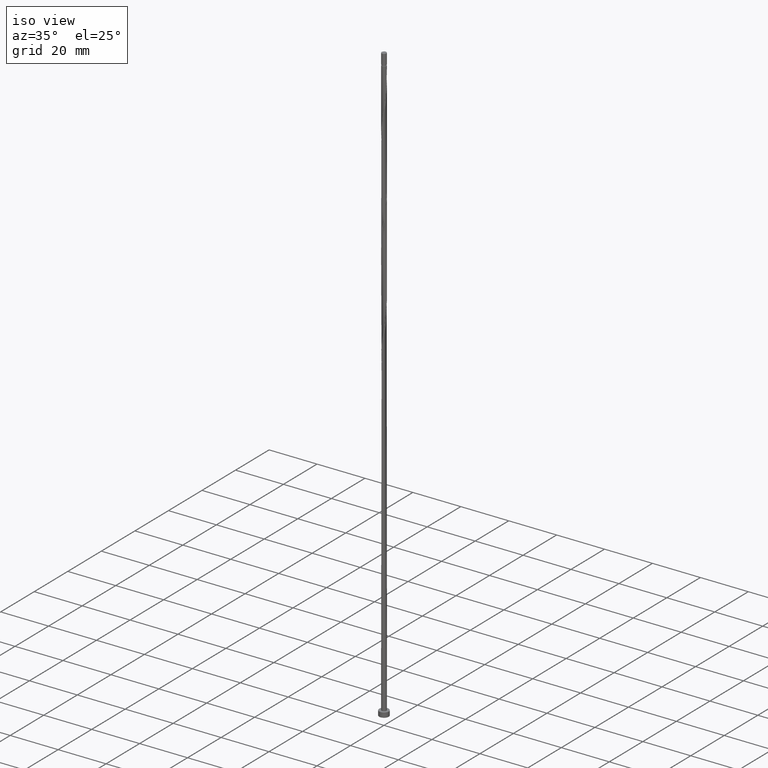
[diagram: clean part render]
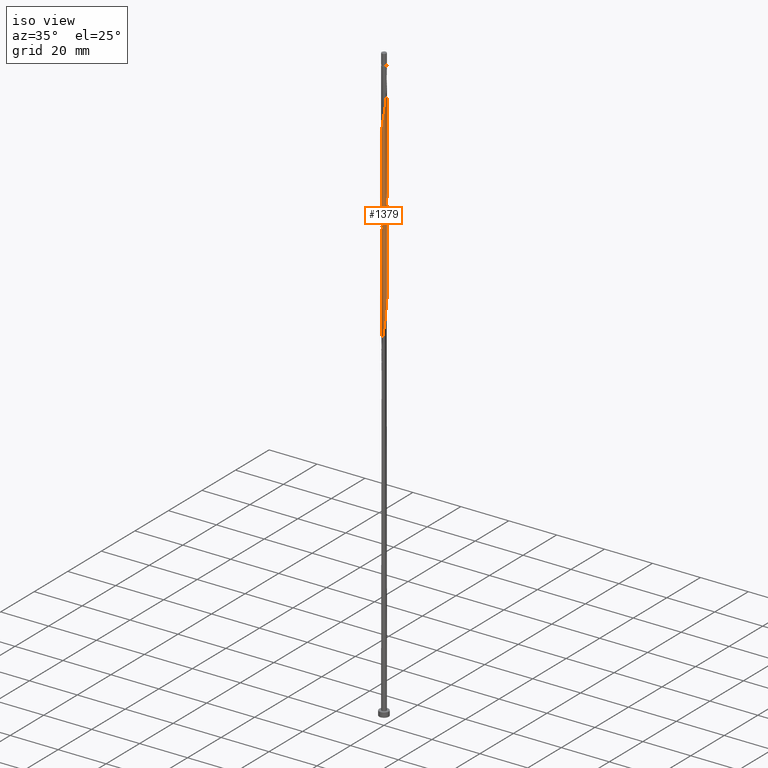
[diagram: same view with one face highlighted and labeled with its STEP entity id]
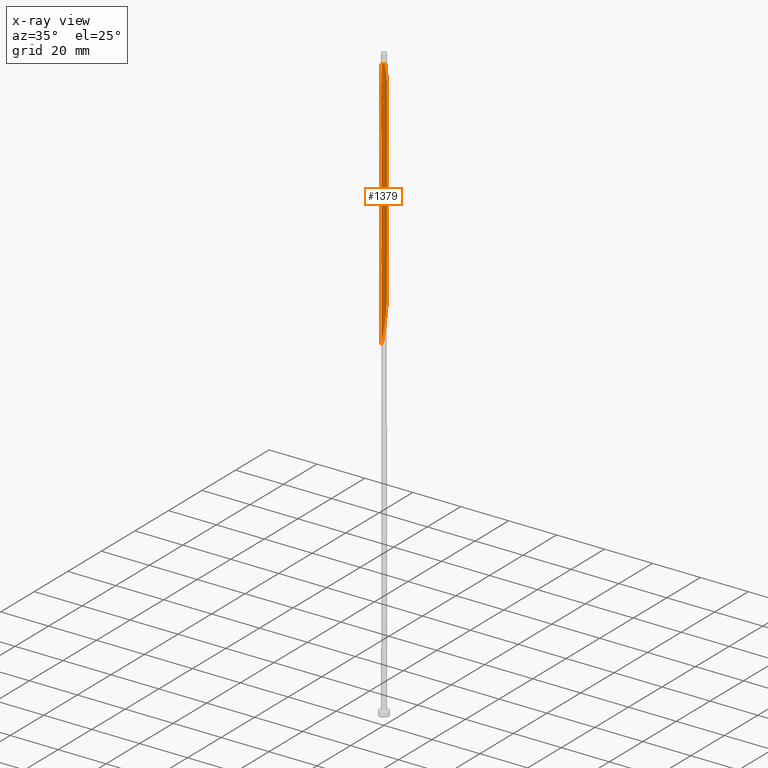
[diagram: x-ray of the same camera — body ghosted, the highlighted face saturated]
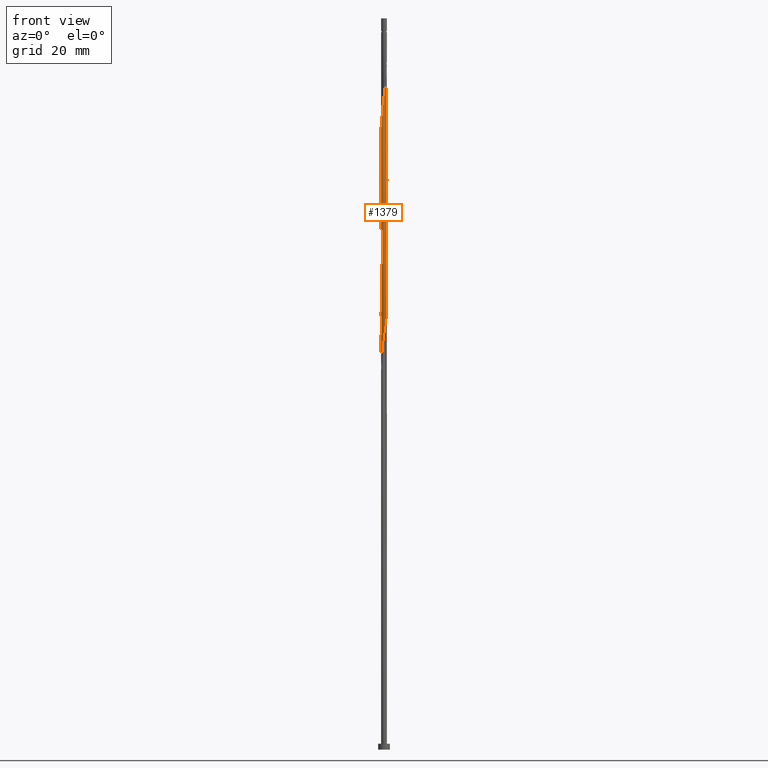
[diagram: same view with one face highlighted and labeled with its STEP entity id]
A machine part, iso view. The second image highlights one B-rep face of the part: STEP entity #1379.
The next image is the same camera in x-ray: the body ghosted, the highlighted face saturated — about 0% of this face is hidden behind the body in this view.
A second angle (front view) of the same face is appended — the face is thin or edge-on in the first view.
In plain terms, the highlighted cylindrical surface (bore or boss wall) has radius 1 mm, axis along (-0, -0, -1).
Its self-contained STEP definition (entity closure, byte-faithful):
#1 = CARTESIAN_POINT ( 'NONE',  ( 0.04131436890171372167, 0.9991461969713221203, 243.6707133084280201 ) ) ;
#3 = CARTESIAN_POINT ( 'NONE',  ( -1.000000000000001332, 3.776374479654925961E-16, 212.6953555351000773 ) ) ;
#4 = CARTESIAN_POINT ( 'NONE',  ( -0.9999999999999820144, 0.000000000000000000, 245.2732774109920797 ) ) ;
#9 = CARTESIAN_POINT ( 'NONE',  ( 0.1626326816669504405, 0.9941297243636999514, 242.8694312571459761 ) ) ;
#39 = CARTESIAN_POINT ( 'NONE',  ( -1.000000000000001554, -6.206714491314109161E-16, 132.0178659535507109 ) ) ;
#43 = CARTESIAN_POINT ( 'NONE',  ( -0.9672781958313425577, -0.2812760030270849421, 133.8950722827869981 ) ) ;
#52 = CARTESIAN_POINT ( 'NONE',  ( 0.1989974874213398526, 0.9799999999999982059, 203.6066107443254509 ) ) ;
#54 = CARTESIAN_POINT ( 'NONE',  ( -1.000000000000001998, -0.08125643853703547193, 132.5575666908989945 ) ) ;
#63 = CARTESIAN_POINT ( 'NONE',  ( 0.8718570959045008895, 0.5045874575637011583, 197.9976363853510861 ) ) ;
#72 = CARTESIAN_POINT ( 'NONE',  ( 0.6934807312836421822, 0.7204751732976698575, 238.8630210007356709 ) ) ;
#78 = CARTESIAN_POINT ( 'NONE',  ( 0.9968411931290096506, -0.07942062503616402480, 193.9912261289408661 ) ) ;
#81 = CARTESIAN_POINT ( 'NONE',  ( 0.3179910309791544876, -0.9558373304210522337, 225.2412261289407809 ) ) ;
#114 = CARTESIAN_POINT ( 'NONE',  ( -0.08000394386352469023, -1.004162669578944067, 141.9078927956075233 ) ) ;
#116 = FACE_OUTER_BOUND ( 'NONE', #1444, .T. ) ;
#125 = CARTESIAN_POINT ( 'NONE',  ( -0.6316322329299663974, -0.7752681615569591012, 179.5681492058639321 ) ) ;
#130 = CARTESIAN_POINT ( 'NONE',  ( 1.000000000000000000, 1.224646799147353207E-16, 250.0000000000000000 ) ) ;
#133 = CARTESIAN_POINT ( 'NONE',  ( -0.6316322329299663974, -0.7752681615569591012, 137.9014825391972181 ) ) ;
#141 = CARTESIAN_POINT ( 'NONE',  ( 0.9871977833283673842, -0.2004590596635323629, 151.5232774109920797 ) ) ;
#143 = LINE ( 'NONE', #130, #479 ) ;
#144 = VERTEX_POINT ( 'NONE', #1627 ) ;
#154 = EDGE_CURVE ( 'NONE', #559, #649, #308, .T. ) ;
#176 = CARTESIAN_POINT ( 'NONE',  ( -0.9105386168779776579, 0.4308859770096601927, 212.4207133084279917 ) ) ;
#182 = CARTESIAN_POINT ( 'NONE',  ( -0.04131436890171313187, -0.9991461969713221203, 222.8373799750946489 ) ) ;
#204 = CARTESIAN_POINT ( 'NONE',  ( 0.9672781958313422246, -0.2812760030270856637, 231.6514825391971328 ) ) ;
#217 = CARTESIAN_POINT ( 'NONE',  ( 0.9968411931290097616, 0.07942062503616280356, 234.0553286930433501 ) ) ;
#225 = CARTESIAN_POINT ( 'NONE',  ( 0.9195676458679213905, -0.3929317302953934665, 230.8502004879151457 ) ) ;
#226 = AXIS2_PLACEMENT_3D ( 'NONE', #484, #744, #1011 ) ;
#233 = CARTESIAN_POINT ( 'NONE',  ( 0.4277443331018992434, -0.9038997651837366032, 226.0425081802229101 ) ) ;
#238 = CARTESIAN_POINT ( 'NONE',  ( 0.9868813993804974594, 0.1614469063091452106, 153.9271235648382685 ) ) ;
#244 = CARTESIAN_POINT ( 'NONE',  ( -0.5374976352246447764, -0.8519621999464206397, 138.7027645904792905 ) ) ;
#248 = CARTESIAN_POINT ( 'NONE',  ( -0.6059992068794376463, -0.8046789790165532752, 218.8309697186843721 ) ) ;
#254 = CARTESIAN_POINT ( 'NONE',  ( 0.9488682001031725211, -0.3156725183365965415, 150.7219953597100641 ) ) ;
#262 = CARTESIAN_POINT ( 'NONE',  ( 1.006484602929652583, 0.04161780959120506967, 153.1258415135561961 ) ) ;
#272 = CARTESIAN_POINT ( 'NONE',  ( -0.9871977833283673842, 0.2004590596635321964, 172.3566107443254509 ) ) ;
#286 = CARTESIAN_POINT ( 'NONE',  ( 0.08000394386352403797, -1.004162669578944067, 223.6386620263766929 ) ) ;
#294 = EDGE_CURVE ( 'NONE', #144, #649, #1454, .T. ) ;
#308 = LINE ( 'NONE', #834, #445 ) ;
#323 = CARTESIAN_POINT ( 'NONE',  ( 0.7257668306352885734, 0.6985741231674978957, 199.6002004879151457 ) ) ;
#329 = CARTESIAN_POINT ( 'NONE',  ( 0.7809622556878468291, -0.6362713675787871059, 189.9848158725305893 ) ) ;
#340 = AXIS2_PLACEMENT_3D ( 'NONE', #548, #1289, #675 ) ;
#346 = CARTESIAN_POINT ( 'NONE',  ( 1.000000000000000000, 1.224646799147353207E-16, 245.2732774109920797 ) ) ;
#350 = CARTESIAN_POINT ( 'NONE',  ( 1.006484602929652361, -0.04161780959120545131, 233.2540466417613061 ) ) ;
#358 = ORIENTED_EDGE ( 'NONE', *, *, #983, .T. ) ;
#365 = CARTESIAN_POINT ( 'NONE',  ( 0.9488682001031725211, -0.3156725183365965415, 192.3886620263766645 ) ) ;
#371 = CARTESIAN_POINT ( 'NONE',  ( -0.8457504362829123545, 0.5335786722942235105, 169.9527645904792621 ) ) ;
#373 = CARTESIAN_POINT ( 'NONE',  ( 0.9105386168779777689, 0.4308859770096596375, 236.4591748468895105 ) ) ;
#377 = CARTESIAN_POINT ( 'NONE',  ( -0.1989974874213397138, -0.9799999999999982059, 141.1066107443253657 ) ) ;
#388 = CARTESIAN_POINT ( 'NONE',  ( 0.1989974874213398526, 0.9799999999999982059, 161.9399440776587937 ) ) ;
#399 = CARTESIAN_POINT ( 'NONE',  ( -0.9195676458679215015, -0.3929317302953933000, 134.6963543340690421 ) ) ;
#407 = CARTESIAN_POINT ( 'NONE',  ( -0.9868813993804974594, -0.1614469063091450995, 174.7604568981715829 ) ) ;
#411 = CARTESIAN_POINT ( 'NONE',  ( -0.6934807312836420712, -0.7204751732976698575, 218.0296876674022997 ) ) ;
#438 = ORIENTED_EDGE ( 'NONE', *, *, #154, .T. ) ;
#445 = VECTOR ( 'NONE', #1511, 1000.000000000000000 ) ;
#460 = CARTESIAN_POINT ( 'NONE',  ( 0.6316322329299669525, 0.7752681615569589901, 200.4014825391972181 ) ) ;
#462 = CARTESIAN_POINT ( 'NONE',  ( -0.9868813993804974594, -0.1614469063091450995, 133.0937902315049257 ) ) ;
#469 = CARTESIAN_POINT ( 'NONE',  ( -0.7809622556878472732, 0.6362713675787868839, 210.8181492058639037 ) ) ;
#472 = CARTESIAN_POINT ( 'NONE',  ( 0.5009084468820622638, 0.8655002760497554348, 240.4655851032997589 ) ) ;
#479 = VECTOR ( 'NONE', #1019, 1000.000000000000000 ) ;
#484 = CARTESIAN_POINT ( 'NONE',  ( 0.000000000000000000, 0.000000000000000000, 245.2732774109920797 ) ) ;
#492 = DIRECTION ( 'NONE',  ( -0.000000000000000000, -0.000000000000000000, -1.000000000000000000 ) ) ;
#496 = CARTESIAN_POINT ( 'NONE',  ( 0.5009084468820617086, -0.8655002760497557679, 187.5809697186844289 ) ) ;
#503 = CARTESIAN_POINT ( 'NONE',  ( -1.006484602929652583, -0.04161780959120544438, 173.9591748468895673 ) ) ;
#506 = CARTESIAN_POINT ( 'NONE',  ( 0.7988119632698938988, -0.6015807903656001931, 229.2476363853510293 ) ) ;
#507 = VECTOR ( 'NONE', #492, 1000.000000000000000 ) ;
#512 = CARTESIAN_POINT ( 'NONE',  ( 0.08000394386352449594, 1.004162669578944511, 162.7412261289408093 ) ) ;
#516 = CARTESIAN_POINT ( 'NONE',  ( -0.7809622556878470512, -0.6362713675787865508, 217.2284056161203125 ) ) ;
#523 = CARTESIAN_POINT ( 'NONE',  ( -0.9195676458679215015, -0.3929317302953933000, 176.3630210007356993 ) ) ;
#527 = CARTESIAN_POINT ( 'NONE',  ( -0.1626326816669503295, -0.9941297243636999514, 222.0360979238126049 ) ) ;
#532 = CARTESIAN_POINT ( 'NONE',  ( 0.8718570959045008895, 0.5045874575637011583, 156.3309697186843721 ) ) ;
#540 = CARTESIAN_POINT ( 'NONE',  ( 0.5009084468820617086, -0.8655002760497557679, 145.9143030520177433 ) ) ;
#543 = CARTESIAN_POINT ( 'NONE',  ( -0.9105386168779776579, -0.4308859770096599151, 215.6258415135561677 ) ) ;
#548 = CARTESIAN_POINT ( 'NONE',  ( 0.000000000000000000, 0.000000000000000000, 250.0000000000000000 ) ) ;
#559 = VERTEX_POINT ( 'NONE', #1032 ) ;
#565 = VERTEX_POINT ( 'NONE', #4 ) ;
#566 = CARTESIAN_POINT ( 'NONE',  ( 0.08000394386352449594, 1.004162669578944511, 204.4078927956074665 ) ) ;
#576 = ORIENTED_EDGE ( 'NONE', *, *, #930, .F. ) ;
#585 = VERTEX_POINT ( 'NONE', #1324 ) ;
#587 = CARTESIAN_POINT ( 'NONE',  ( 0.3179910309791552647, 0.9558373304210524557, 202.8053286930433785 ) ) ;
#599 = CARTESIAN_POINT ( 'NONE',  ( 1.000000000000001554, 2.131221240993398902E-16, 194.5178659535507677 ) ) ;
#613 = CARTESIAN_POINT ( 'NONE',  ( 0.9871977833283673842, -0.2004590596635323629, 193.1899440776587937 ) ) ;
#634 = CARTESIAN_POINT ( 'NONE',  ( -0.8718570959045007784, -0.5045874575637016024, 177.1643030520177149 ) ) ;
#636 = CARTESIAN_POINT ( 'NONE',  ( 0.6316322329299662863, -0.7752681615569592122, 227.6450722827869697 ) ) ;
#643 = CARTESIAN_POINT ( 'NONE',  ( -0.4277443331018998540, -0.9038997651837361591, 139.5040466417612777 ) ) ;
#646 = CIRCLE ( 'NONE', #226, 0.9999999999999820144 ) ;
#649 = VERTEX_POINT ( 'NONE', #39 ) ;
#660 = CARTESIAN_POINT ( 'NONE',  ( -0.7257668306352883514, -0.6985741231674978957, 137.1002004879152025 ) ) ;
#667 = CARTESIAN_POINT ( 'NONE',  ( 0.6934807312836421822, -0.7204751732976701906, 147.5168671545818029 ) ) ;
#675 = DIRECTION ( 'NONE',  ( -1.000000000000000000, 0.000000000000000000, 0.000000000000000000 ) ) ;
#681 = EDGE_CURVE ( 'NONE', #585, #144, #1517, .T. ) ;
#702 = CARTESIAN_POINT ( 'NONE',  ( -0.6059992068794372022, 0.8046789790165538303, 209.2155851032997873 ) ) ;
#712 = CARTESIAN_POINT ( 'NONE',  ( -0.04131436890171278492, 0.9991461969713223423, 205.2091748468895389 ) ) ;
#714 = CARTESIAN_POINT ( 'NONE',  ( -1.000000000000001554, -6.206714491314109161E-16, 132.0178659535507109 ) ) ;
#723 = CARTESIAN_POINT ( 'NONE',  ( 0.9195676458679217236, 0.3929317302953931335, 197.1963543340690421 ) ) ;
#728 = CARTESIAN_POINT ( 'NONE',  ( -0.3179910309791552092, -0.9558373304210524557, 181.9719953597100641 ) ) ;
#731 = CARTESIAN_POINT ( 'NONE',  ( 0.7809622556878473842, 0.6362713675787859957, 238.0617389494536553 ) ) ;
#733 = CARTESIAN_POINT ( 'NONE',  ( 0.4277443331019004091, 0.9038997651837360481, 202.0040466417612777 ) ) ;
#744 = DIRECTION ( 'NONE',  ( -0.000000000000000000, -0.000000000000000000, -1.000000000000000000 ) ) ;
#753 = LINE ( 'NONE', #1268, #507 ) ;
#757 = CARTESIAN_POINT ( 'NONE',  ( 1.000000000000001554, 2.131221240993398902E-16, 194.5178659535507677 ) ) ;
#766 = CARTESIAN_POINT ( 'NONE',  ( 0.1626326816669496633, -0.9941297243637001735, 185.1771235648382401 ) ) ;
#773 = CARTESIAN_POINT ( 'NONE',  ( -0.9488682001031725211, 0.3156725183365962084, 171.5553286930433785 ) ) ;
#777 = CARTESIAN_POINT ( 'NONE',  ( 0.7257668306352885734, 0.6985741231674978957, 157.9335338212485453 ) ) ;
#783 = CARTESIAN_POINT ( 'NONE',  ( -0.5009084468820621527, -0.8655002760497555458, 219.6322517699664445 ) ) ;
#786 = CARTESIAN_POINT ( 'NONE',  ( 0.04131436890171247961, -0.9991461969713223423, 142.7091748468895389 ) ) ;
#798 = CARTESIAN_POINT ( 'NONE',  ( -0.7257668306352883514, -0.6985741231674978957, 178.7668671545818597 ) ) ;
#823 = CARTESIAN_POINT ( 'NONE',  ( -1.000000000000001554, -1.495593853328700361E-16, 215.3511992868840537 ) ) ;
#834 = CARTESIAN_POINT ( 'NONE',  ( -1.000000000000000000, 0.000000000000000000, 250.0000000000000000 ) ) ;
#838 = CARTESIAN_POINT ( 'NONE',  ( -0.3958176868846866037, 0.9263215730829580385, 207.6130210007356993 ) ) ;
#846 = CARTESIAN_POINT ( 'NONE',  ( 1.000000000000001332, 0.08125643853704081487, 195.0575666908990513 ) ) ;
#852 = CARTESIAN_POINT ( 'NONE',  ( -0.1989974874213397138, -0.9799999999999982059, 182.7732774109920797 ) ) ;
#856 = CARTESIAN_POINT ( 'NONE',  ( -0.1626326816669499686, 0.9941297243637001735, 206.0104568981716398 ) ) ;
#859 = EDGE_CURVE ( 'NONE', #565, #1085, #646, .T. ) ;
#883 = CARTESIAN_POINT ( 'NONE',  ( 0.3958176868846864926, -0.9263215730829582606, 186.7796876674023281 ) ) ;
#891 = CARTESIAN_POINT ( 'NONE',  ( 0.1626326816669496633, -0.9941297243637001735, 143.5104568981716113 ) ) ;
#893 = CARTESIAN_POINT ( 'NONE',  ( 0.8457504362829123545, 0.5335786722942232885, 237.2604568981715829 ) ) ;
#896 = CARTESIAN_POINT ( 'NONE',  ( 0.9672781958313425577, 0.2812760030270844980, 154.7284056161202841 ) ) ;
#901 = CARTESIAN_POINT ( 'NONE',  ( -0.9968411931290097616, -0.07942062503616315050, 213.2219953597100073 ) ) ;
#905 = CARTESIAN_POINT ( 'NONE',  ( 0.7988119632698946759, 0.6015807903655994160, 157.1322517699664445 ) ) ;
#910 = CARTESIAN_POINT ( 'NONE',  ( -0.7809622556878472732, 0.6362713675787868839, 169.1514825391972465 ) ) ;
#921 = CARTESIAN_POINT ( 'NONE',  ( -0.6934807312836421822, 0.7204751732976701906, 168.3502004879151173 ) ) ;
#922 = CARTESIAN_POINT ( 'NONE',  ( -0.1989974874213569223, 0.9800000000002561107, 245.2732774109920797 ) ) ;
#930 = EDGE_CURVE ( 'NONE', #565, #585, #753, .T. ) ;
#944 = CARTESIAN_POINT ( 'NONE',  ( -0.9488682001031725211, 0.3156725183365962084, 213.2219953597100641 ) ) ;
#978 = CARTESIAN_POINT ( 'NONE',  ( 0.2792251842758183278, -0.9602256487233289395, 185.9784056161203125 ) ) ;
#980 = CARTESIAN_POINT ( 'NONE',  ( 0.3958176868846867702, 0.9263215730829578165, 241.2668671545818313 ) ) ;
#983 = EDGE_CURVE ( 'NONE', #1540, #144, #143, .T. ) ;
#988 = CARTESIAN_POINT ( 'NONE',  ( -0.5374976352246447764, -0.8519621999464206397, 180.3694312571459761 ) ) ;
#1007 = CARTESIAN_POINT ( 'NONE',  ( 0.4277443331019004091, 0.9038997651837360481, 160.3373799750946489 ) ) ;
#1009 = CARTESIAN_POINT ( 'NONE',  ( 0.8718570959045004454, -0.5045874575637021575, 230.0489184366330733 ) ) ;
#1011 = DIRECTION ( 'NONE',  ( -1.000000000000000000, 0.000000000000000000, 0.000000000000000000 ) ) ;
#1016 = CARTESIAN_POINT ( 'NONE',  ( 0.3179910309791552647, 0.9558373304210524557, 161.1386620263766929 ) ) ;
#1019 = DIRECTION ( 'NONE',  ( -0.000000000000000000, -0.000000000000000000, -1.000000000000000000 ) ) ;
#1025 = CARTESIAN_POINT ( 'NONE',  ( -0.9968411931290099837, 0.07942062503616346969, 173.1578927956074665 ) ) ;
#1032 = CARTESIAN_POINT ( 'NONE',  ( -1.000000000000001332, 3.776374479654925961E-16, 212.6953555351000773 ) ) ;
#1035 = CARTESIAN_POINT ( 'NONE',  ( -0.7988119632698946759, -0.6015807903655995270, 136.2989184366331017 ) ) ;
#1044 = CARTESIAN_POINT ( 'NONE',  ( 0.2792251842758183278, -0.9602256487233289395, 144.3117389494536553 ) ) ;
#1049 = CARTESIAN_POINT ( 'NONE',  ( -0.1989974874213569223, 0.9800000000002561107, 245.2732774109920229 ) ) ;
#1071 =( BOUNDED_CURVE ( )  B_SPLINE_CURVE ( 2, ( #3, #1599, #901, #1700, #1456, #543, #1443, #516, #411, #248, #783, #1175, #1710, #527, #182, #286, #1400, #81, #233, #1256, #636, #1149, #506, #1009, #225, #204, #1126, #350, #217, #1563, #1118, #373, #893, #731, #72, #1661, #472, #980, #1581, #9, #1, #1440, #922 ),
 .UNSPECIFIED., .F., .T. ) 
 B_SPLINE_CURVE_WITH_KNOTS ( ( 3, 2, 2, 2, 2, 2, 2, 2, 2, 2, 2, 2, 2, 2, 2, 2, 2, 2, 2, 2, 2, 3 ),
 ( 0.5545271625973826612, 0.5576923076923077094, 0.5673076923076922906, 0.5769230769230768718, 0.5865384615384615641, 0.5961538461538461453, 0.6057692307692308376, 0.6153846153846154188, 0.6250000000000000000, 0.6346153846153845812, 0.6442307692307691624, 0.6538461538461538547, 0.6634615384615384359, 0.6730769230769231282, 0.6826923076923077094, 0.6923076923076922906, 0.7019230769230768718, 0.7115384615384615641, 0.7211538461538461453, 0.7307692307692308376, 0.7403846153846154188, 0.7500000000000000000 ),
 .UNSPECIFIED. ) 
 CURVE ( )  GEOMETRIC_REPRESENTATION_ITEM ( )  RATIONAL_B_SPLINE_CURVE ( ( 0.9061636035682737456, 0.9069090390690621728, 0.9090909090909192747, 0.9024626128164228156, 0.9090909090909192747, 0.9024626128164228156, 0.9090909090909192747, 0.9024626128164228156, 0.9090909090909192747, 0.9024626128164228156, 0.9090909090909192747, 0.9024626128164228156, 0.9090909090909192747, 0.9024626128164228156, 0.9090909090909192747, 0.9024626128164228156, 0.9090909090909192747, 0.9024626128164228156, 0.9090909090909192747, 0.9024626128164228156, 0.9090909090909192747, 0.9024626128164228156, 0.9090909090909192747, 0.9024626128164228156, 0.9090909090909192747, 0.9024626128164228156, 0.9090909090909192747, 0.9024626128164228156, 0.9090909090909192747, 0.9024626128164228156, 0.9090909090909192747, 0.9024626128164228156, 0.9090909090909192747, 0.9024626128164228156, 0.9090909090909192747, 0.9024626128164228156, 0.9090909090909192747, 0.9024626128164228156, 0.9090909090909192747, 0.9024626128164228156, 0.9090909090909192747, 0.9024626128164228156, 0.9090909090909192747 ) ) 
 REPRESENTATION_ITEM ( '' )  );
#1075 = CARTESIAN_POINT ( 'NONE',  ( 0.5374976352246449984, 0.8519621999464206397, 201.2027645904792337 ) ) ;
#1085 = VERTEX_POINT ( 'NONE', #1049 ) ;
#1090 = EDGE_CURVE ( 'NONE', #559, #1085, #1071, .T. ) ;
#1102 = CARTESIAN_POINT ( 'NONE',  ( -0.6934807312836421822, 0.7204751732976701906, 210.0168671545818029 ) ) ;
#1109 = CARTESIAN_POINT ( 'NONE',  ( 0.04131436890171247961, -0.9991461969713223423, 184.3758415135561961 ) ) ;
#1118 = CARTESIAN_POINT ( 'NONE',  ( 0.9488682001031727431, 0.3156725183365953757, 235.6578927956074949 ) ) ;
#1124 = CARTESIAN_POINT ( 'NONE',  ( -0.4277443331018998540, -0.9038997651837361591, 181.1707133084279633 ) ) ;
#1126 = CARTESIAN_POINT ( 'NONE',  ( 0.9868813993804974594, -0.1614469063091455159, 232.4527645904792621 ) ) ;
#1147 = CARTESIAN_POINT ( 'NONE',  ( 0.6316322329299669525, 0.7752681615569589901, 158.7348158725305609 ) ) ;
#1149 = CARTESIAN_POINT ( 'NONE',  ( 0.7257668306352880183, -0.6985741231674980067, 228.4463543340690705 ) ) ;
#1157 = CARTESIAN_POINT ( 'NONE',  ( -0.5009084468820619307, 0.8655002760497556569, 166.7476363853510577 ) ) ;
#1169 = CARTESIAN_POINT ( 'NONE',  ( -0.6059992068794372022, 0.8046789790165538303, 167.5489184366331017 ) ) ;
#1175 = CARTESIAN_POINT ( 'NONE',  ( -0.3958176868846866592, -0.9263215730829578165, 220.4335338212484885 ) ) ;
#1183 = CARTESIAN_POINT ( 'NONE',  ( -0.2792251842758183833, 0.9602256487233289395, 165.1450722827869697 ) ) ;
#1208 = CARTESIAN_POINT ( 'NONE',  ( -1.000000000000001554, 0.03977313033677527809, 215.0870283712510229 ) ) ;
#1218 = CARTESIAN_POINT ( 'NONE',  ( 0.9672781958313425577, 0.2812760030270844980, 196.3950722827869981 ) ) ;
#1231 = CARTESIAN_POINT ( 'NONE',  ( -0.5009084468820619307, 0.8655002760497556569, 208.4143030520177149 ) ) ;
#1238 = ORIENTED_EDGE ( 'NONE', *, *, #983, .F. ) ;
#1241 = CARTESIAN_POINT ( 'NONE',  ( 0.9868813993804974594, 0.1614469063091452106, 195.5937902315048973 ) ) ;
#1256 = CARTESIAN_POINT ( 'NONE',  ( 0.5374976352246441103, -0.8519621999464206397, 226.8437902315049257 ) ) ;
#1268 = CARTESIAN_POINT ( 'NONE',  ( -1.000000000000000000, 0.000000000000000000, 250.0000000000000000 ) ) ;
#1274 = CARTESIAN_POINT ( 'NONE',  ( 0.6934807312836421822, -0.7204751732976701906, 189.1835338212484601 ) ) ;
#1287 = CARTESIAN_POINT ( 'NONE',  ( 0.8457504362829121325, -0.5335786722942236215, 149.1194312571459193 ) ) ;
#1289 = DIRECTION ( 'NONE',  ( -0.000000000000000000, -0.000000000000000000, -1.000000000000000000 ) ) ;
#1304 = CARTESIAN_POINT ( 'NONE',  ( -0.3179910309791552092, -0.9558373304210524557, 140.3053286930433501 ) ) ;
#1319 = CARTESIAN_POINT ( 'NONE',  ( -0.9105386168779776579, 0.4308859770096601927, 170.7540466417613061 ) ) ;
#1324 = CARTESIAN_POINT ( 'NONE',  ( -1.000000000000001554, -1.495593853328700608E-16, 215.3511992868840537 ) ) ;
#1331 = ORIENTED_EDGE ( 'NONE', *, *, #294, .F. ) ;
#1353 = CARTESIAN_POINT ( 'NONE',  ( -0.9968411931290099837, 0.07942062503616346969, 214.8245594622741237 ) ) ;
#1367 = CARTESIAN_POINT ( 'NONE',  ( -0.2792251842758183833, 0.9602256487233289395, 206.8117389494536269 ) ) ;
#1379 = ADVANCED_FACE ( 'NONE', ( #116 ), #1708, .T. ) ;
#1385 = CARTESIAN_POINT ( 'NONE',  ( 1.000000000000001554, -0.03977313033677344623, 194.2536950379177938 ) ) ;
#1400 = CARTESIAN_POINT ( 'NONE',  ( 0.1989974874213394362, -0.9799999999999983169, 224.4399440776587369 ) ) ;
#1438 = CARTESIAN_POINT ( 'NONE',  ( -0.04131436890171278492, 0.9991461969713223423, 163.5425081802228533 ) ) ;
#1440 = CARTESIAN_POINT ( 'NONE',  ( -0.08000394386352392695, 1.004162669578944067, 244.4719953597100073 ) ) ;
#1441 = ORIENTED_EDGE ( 'NONE', *, *, #1090, .F. ) ;
#1443 = CARTESIAN_POINT ( 'NONE',  ( -0.8457504362829123545, -0.5335786722942231775, 216.4271235648382685 ) ) ;
#1444 = EDGE_LOOP ( 'NONE', ( #576, #1584, #1441, #438, #1331, #1238, #358, #1621 ) ) ;
#1447 = CARTESIAN_POINT ( 'NONE',  ( 0.9195676458679217236, 0.3929317302953931335, 155.5296876674022997 ) ) ;
#1454 =( BOUNDED_CURVE ( )  B_SPLINE_CURVE ( 2, ( #757, #1385, #78, #613, #365, #1520, #1674, #329, #1274, #1681, #496, #883, #978, #766, #1109, #1652, #852, #728, #1124, #988, #125, #798, #1596, #634, #523, #1707, #407, #503, #1025, #272, #773, #1319, #371, #910, #921, #1169, #1157, #1462, #1183, #1580, #1438, #512, #388, #1016, #1007, #1714, #1147, #777, #905, #532, #1447, #896, #238, #262, #1561, #141, #254, #1719, #1287, #1570, #667, #1697, #540, #1689, #1044, #891, #786, #114, #377, #1304, #643, #244, #133, #660, #1035, #1589, #399, #43, #462, #54, #714 ),
 .UNSPECIFIED., .F., .T. ) 
 B_SPLINE_CURVE_WITH_KNOTS ( ( 3, 2, 2, 2, 2, 2, 2, 2, 2, 2, 2, 2, 2, 2, 2, 2, 2, 2, 2, 2, 2, 2, 2, 2, 2, 2, 2, 2, 2, 2, 2, 2, 2, 2, 2, 2, 2, 2, 2, 2, 3 ),
 ( 0.5545271625973824392, 0.5576923076923077094, 0.5673076923076922906, 0.5769230769230768718, 0.5865384615384615641, 0.5961538461538461453, 0.6057692307692307265, 0.6153846153846154188, 0.6250000000000000000, 0.6346153846153845812, 0.6442307692307692735, 0.6538461538461538547, 0.6634615384615384359, 0.6730769230769231282, 0.6826923076923077094, 0.6923076923076922906, 0.7019230769230768718, 0.7115384615384615641, 0.7211538461538461453, 0.7307692307692307265, 0.7403846153846154188, 0.7500000000000000000, 0.7596153846153845812, 0.7692307692307692735, 0.7788461538461538547, 0.7884615384615384359, 0.7980769230769231282, 0.8076923076923077094, 0.8173076923076922906, 0.8269230769230768718, 0.8365384615384615641, 0.8461538461538461453, 0.8557692307692307265, 0.8653846153846154188, 0.8750000000000000000, 0.8846153846153845812, 0.8942307692307692735, 0.9038461538461538547, 0.9134615384615384359, 0.9230769230769231282, 0.9295271625973828833 ),
 .UNSPECIFIED. ) 
 CURVE ( )  GEOMETRIC_REPRESENTATION_ITEM ( )  RATIONAL_B_SPLINE_CURVE ( ( 0.9061636035682634205, 0.9069090390690519587, 0.9090909090909090606, 0.9024626128164124905, 0.9090909090909090606, 0.9024626128164124905, 0.9090909090909090606, 0.9024626128164124905, 0.9090909090909090606, 0.9024626128164124905, 0.9090909090909090606, 0.9024626128164124905, 0.9090909090909090606, 0.9024626128164124905, 0.9090909090909090606, 0.9024626128164124905, 0.9090909090909090606, 0.9024626128164124905, 0.9090909090909090606, 0.9024626128164124905, 0.9090909090909090606, 0.9024626128164124905, 0.9090909090909090606, 0.9024626128164124905, 0.9090909090909090606, 0.9024626128164124905, 0.9090909090909090606, 0.9024626128164124905, 0.9090909090909090606, 0.9024626128164124905, 0.9090909090909090606, 0.9024626128164124905, 0.9090909090909090606, 0.9024626128164124905, 0.9090909090909090606, 0.9024626128164124905, 0.9090909090909090606, 0.9024626128164124905, 0.9090909090909090606, 0.9024626128164124905, 0.9090909090909090606, 0.9024626128164124905, 0.9090909090909090606, 0.9024626128164124905, 0.9090909090909090606, 0.9024626128164124905, 0.9090909090909090606, 0.9024626128164124905, 0.9090909090909090606, 0.9024626128164124905, 0.9090909090909090606, 0.9024626128164124905, 0.9090909090909090606, 0.9024626128164124905, 0.9090909090909090606, 0.9024626128164124905, 0.9090909090909090606, 0.9024626128164124905, 0.9090909090909090606, 0.9024626128164124905, 0.9090909090909090606, 0.9024626128164124905, 0.9090909090909090606, 0.9024626128164124905, 0.9090909090909090606, 0.9024626128164124905, 0.9090909090909090606, 0.9024626128164124905, 0.9090909090909090606, 0.9024626128164124905, 0.9090909090909090606, 0.9024626128164124905, 0.9090909090909090606, 0.9024626128164124905, 0.9090909090909090606, 0.9024626128164124905, 0.9090909090909090606, 0.9024626128164124905, 0.9090909090909090606, 0.9046444828382693704, 0.9061636035682636425 ) ) 
 REPRESENTATION_ITEM ( '' )  );
#1456 = CARTESIAN_POINT ( 'NONE',  ( -0.9488682001031722990, -0.3156725183365958753, 214.8245594622741237 ) ) ;
#1462 = CARTESIAN_POINT ( 'NONE',  ( -0.3958176868846866037, 0.9263215730829580385, 165.9463543340690705 ) ) ;
#1501 = CARTESIAN_POINT ( 'NONE',  ( -0.9871977833283673842, 0.2004590596635321964, 214.0232774109921081 ) ) ;
#1511 = DIRECTION ( 'NONE',  ( -0.000000000000000000, -0.000000000000000000, -1.000000000000000000 ) ) ;
#1517 =( BOUNDED_CURVE ( )  B_SPLINE_CURVE ( 2, ( #823, #1208, #1353, #1501, #944, #176, #1656, #469, #1102, #702, #1231, #838, #1367, #856, #712, #566, #52, #587, #733, #1075, #460, #323, #1526, #63, #723, #1218, #1241, #846, #599 ),
 .UNSPECIFIED., .F., .T. ) 
 B_SPLINE_CURVE_WITH_KNOTS ( ( 3, 2, 2, 2, 2, 2, 2, 2, 2, 2, 2, 2, 2, 2, 3 ),
 ( 0.4295271625973826057, 0.4326923076923077094, 0.4423076923076922906, 0.4519230769230769273, 0.4615384615384615641, 0.4711538461538461453, 0.4807692307692307820, 0.4903846153846153633, 0.5000000000000000000, 0.5096153846153845812, 0.5192307692307692735, 0.5288461538461538547, 0.5384615384615384359, 0.5480769230769231282, 0.5545271625973824392 ),
 .UNSPECIFIED. ) 
 CURVE ( )  GEOMETRIC_REPRESENTATION_ITEM ( )  RATIONAL_B_SPLINE_CURVE ( ( 0.9061636035682634205, 0.9069090390690519587, 0.9090909090909090606, 0.9024626128164124905, 0.9090909090909090606, 0.9024626128164124905, 0.9090909090909090606, 0.9024626128164124905, 0.9090909090909090606, 0.9024626128164124905, 0.9090909090909090606, 0.9024626128164124905, 0.9090909090909090606, 0.9024626128164124905, 0.9090909090909090606, 0.9024626128164124905, 0.9090909090909090606, 0.9024626128164124905, 0.9090909090909090606, 0.9024626128164124905, 0.9090909090909090606, 0.9024626128164124905, 0.9090909090909090606, 0.9024626128164124905, 0.9090909090909090606, 0.9024626128164124905, 0.9090909090909090606, 0.9046444828382695924, 0.9061636035682634205 ) ) 
 REPRESENTATION_ITEM ( '' )  );
#1520 = CARTESIAN_POINT ( 'NONE',  ( 0.9105386168779776579, -0.4308859770096600261, 191.5873799750946489 ) ) ;
#1526 = CARTESIAN_POINT ( 'NONE',  ( 0.7988119632698946759, 0.6015807903655994160, 198.7989184366330448 ) ) ;
#1540 = VERTEX_POINT ( 'NONE', #346 ) ;
#1561 = CARTESIAN_POINT ( 'NONE',  ( 0.9968411931290096506, -0.07942062503616402480, 152.3245594622740953 ) ) ;
#1563 = CARTESIAN_POINT ( 'NONE',  ( 0.9871977833283672732, 0.2004590596635319188, 234.8566107443253941 ) ) ;
#1570 = CARTESIAN_POINT ( 'NONE',  ( 0.7809622556878468291, -0.6362713675787871059, 148.3181492058639037 ) ) ;
#1580 = CARTESIAN_POINT ( 'NONE',  ( -0.1626326816669499686, 0.9941297243637001735, 164.3437902315049257 ) ) ;
#1581 = CARTESIAN_POINT ( 'NONE',  ( 0.2792251842758189939, 0.9602256487233287174, 242.0681492058639037 ) ) ;
#1584 = ORIENTED_EDGE ( 'NONE', *, *, #859, .T. ) ;
#1589 = CARTESIAN_POINT ( 'NONE',  ( -0.8718570959045007784, -0.5045874575637016024, 135.4976363853510861 ) ) ;
#1596 = CARTESIAN_POINT ( 'NONE',  ( -0.7988119632698946759, -0.6015807903655995270, 177.9655851032998157 ) ) ;
#1599 = CARTESIAN_POINT ( 'NONE',  ( -1.000000000000001332, -0.03977313033677549320, 212.9595264507330796 ) ) ;
#1621 = ORIENTED_EDGE ( 'NONE', *, *, #681, .F. ) ;
#1627 = CARTESIAN_POINT ( 'NONE',  ( 1.000000000000001554, 2.131221240993398902E-16, 194.5178659535507677 ) ) ;
#1652 = CARTESIAN_POINT ( 'NONE',  ( -0.08000394386352469023, -1.004162669578944067, 183.5745594622741521 ) ) ;
#1656 = CARTESIAN_POINT ( 'NONE',  ( -0.8457504362829123545, 0.5335786722942235105, 211.6194312571459477 ) ) ;
#1661 = CARTESIAN_POINT ( 'NONE',  ( 0.6059992068794377573, 0.8046789790165528311, 239.6643030520177149 ) ) ;
#1674 = CARTESIAN_POINT ( 'NONE',  ( 0.8457504362829121325, -0.5335786722942236215, 190.7860979238126049 ) ) ;
#1681 = CARTESIAN_POINT ( 'NONE',  ( 0.6059992068794370912, -0.8046789790165539413, 188.3822517699664445 ) ) ;
#1689 = CARTESIAN_POINT ( 'NONE',  ( 0.3958176868846864926, -0.9263215730829582606, 145.1130210007357562 ) ) ;
#1697 = CARTESIAN_POINT ( 'NONE',  ( 0.6059992068794370912, -0.8046789790165539413, 146.7155851032998157 ) ) ;
#1700 = CARTESIAN_POINT ( 'NONE',  ( -0.9871977833283672732, -0.2004590596635320576, 214.0232774109920513 ) ) ;
#1707 = CARTESIAN_POINT ( 'NONE',  ( -0.9672781958313425577, -0.2812760030270849421, 175.5617389494536553 ) ) ;
#1708 = CYLINDRICAL_SURFACE ( 'NONE', #340, 1.000000000000000000 ) ;
#1710 = CARTESIAN_POINT ( 'NONE',  ( -0.2792251842758185498, -0.9602256487233289395, 221.2348158725305609 ) ) ;
#1714 = CARTESIAN_POINT ( 'NONE',  ( 0.5374976352246449984, 0.8519621999464206397, 159.5360979238126049 ) ) ;
#1719 = CARTESIAN_POINT ( 'NONE',  ( 0.9105386168779776579, -0.4308859770096600261, 149.9207133084279917 ) ) ;